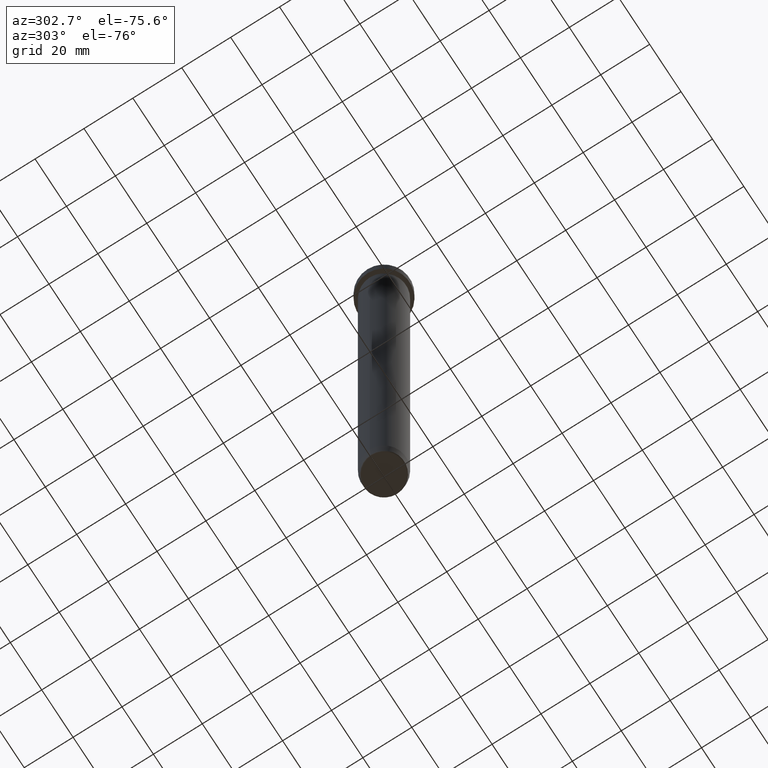
[diagram: clean part render]
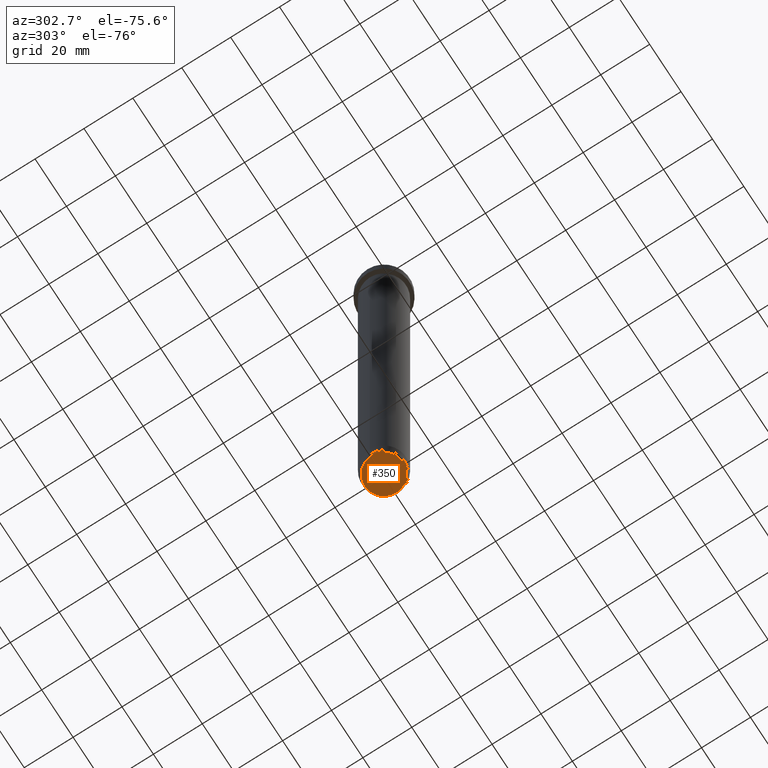
[diagram: same view with one face highlighted and labeled with its STEP entity id]
A machine part, auxiliary view. The second image highlights one B-rep face of the part: STEP entity #350.
In plain terms, the highlighted planar face has unit normal (0, -0, 1).
Its self-contained STEP definition (entity closure, byte-faithful):
#40 = DIRECTION ( 'NONE',  ( 0.000000000000000000, 0.000000000000000000, -1.000000000000000000 ) ) ;
#60 = DIRECTION ( 'NONE',  ( 0.000000000000000000, -0.000000000000000000, 1.000000000000000000 ) ) ;
#61 = ORIENTED_EDGE ( 'NONE', *, *, #398, .T. ) ;
#111 = AXIS2_PLACEMENT_3D ( 'NONE', #472, #60, #206 ) ;
#120 = PLANE ( 'NONE',  #111 ) ;
#123 = CARTESIAN_POINT ( 'NONE',  ( 0.000000000000000000, 0.000000000000000000, -250.0000000000000000 ) ) ;
#132 = DIRECTION ( 'NONE',  ( 1.000000000000000000, 0.000000000000000000, 0.000000000000000000 ) ) ;
#143 = EDGE_LOOP ( 'NONE', ( #287, #61 ) ) ;
#155 = VERTEX_POINT ( 'NONE', #378 ) ;
#173 = DIRECTION ( 'NONE',  ( 0.000000000000000000, 0.000000000000000000, -1.000000000000000000 ) ) ;
#192 = CIRCLE ( 'NONE', #250, 7.862652457579924814 ) ;
#206 = DIRECTION ( 'NONE',  ( 1.000000000000000000, 0.000000000000000000, 0.000000000000000000 ) ) ;
#214 = CIRCLE ( 'NONE', #256, 7.862652457579924814 ) ;
#250 = AXIS2_PLACEMENT_3D ( 'NONE', #405, #173, #132 ) ;
#256 = AXIS2_PLACEMENT_3D ( 'NONE', #123, #40, #591 ) ;
#287 = ORIENTED_EDGE ( 'NONE', *, *, #413, .T. ) ;
#350 = ADVANCED_FACE ( 'NONE', ( #532 ), #120, .F. ) ;
#378 = CARTESIAN_POINT ( 'NONE',  ( 7.862652457579924814, 0.000000000000000000, -250.0000000000000000 ) ) ;
#398 = EDGE_CURVE ( 'NONE', #530, #155, #214, .T. ) ;
#405 = CARTESIAN_POINT ( 'NONE',  ( 0.000000000000000000, 0.000000000000000000, -250.0000000000000000 ) ) ;
#413 = EDGE_CURVE ( 'NONE', #155, #530, #192, .T. ) ;
#472 = CARTESIAN_POINT ( 'NONE',  ( 0.000000000000000000, 2.081899558550500043E-14, -250.0000000000000000 ) ) ;
#508 = CARTESIAN_POINT ( 'NONE',  ( -7.862652457579924814, 9.932154320153875890E-16, -250.0000000000000000 ) ) ;
#530 = VERTEX_POINT ( 'NONE', #508 ) ;
#532 = FACE_OUTER_BOUND ( 'NONE', #143, .T. ) ;
#591 = DIRECTION ( 'NONE',  ( 1.000000000000000000, 0.000000000000000000, 0.000000000000000000 ) ) ;